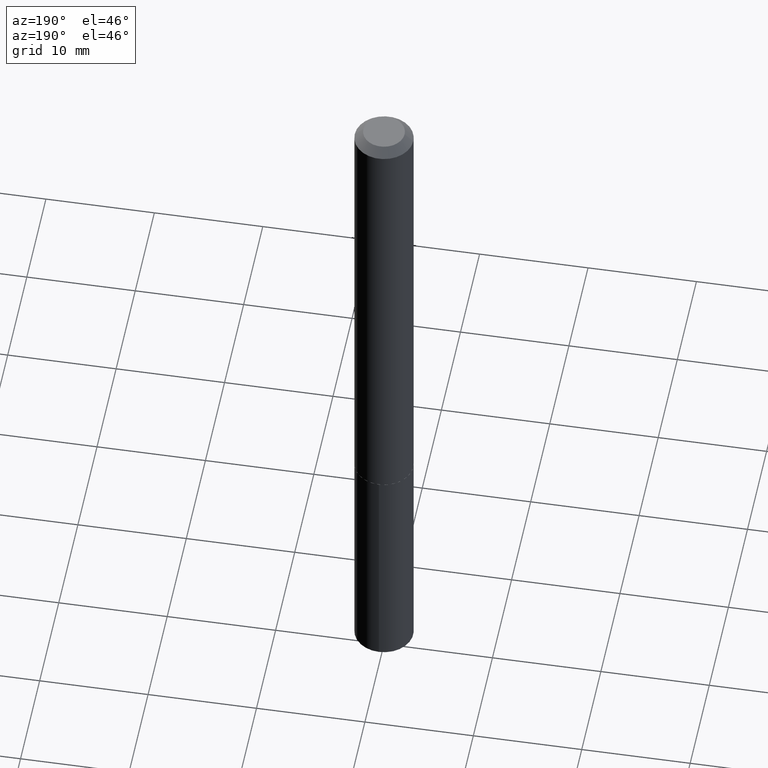
[diagram: clean part render]
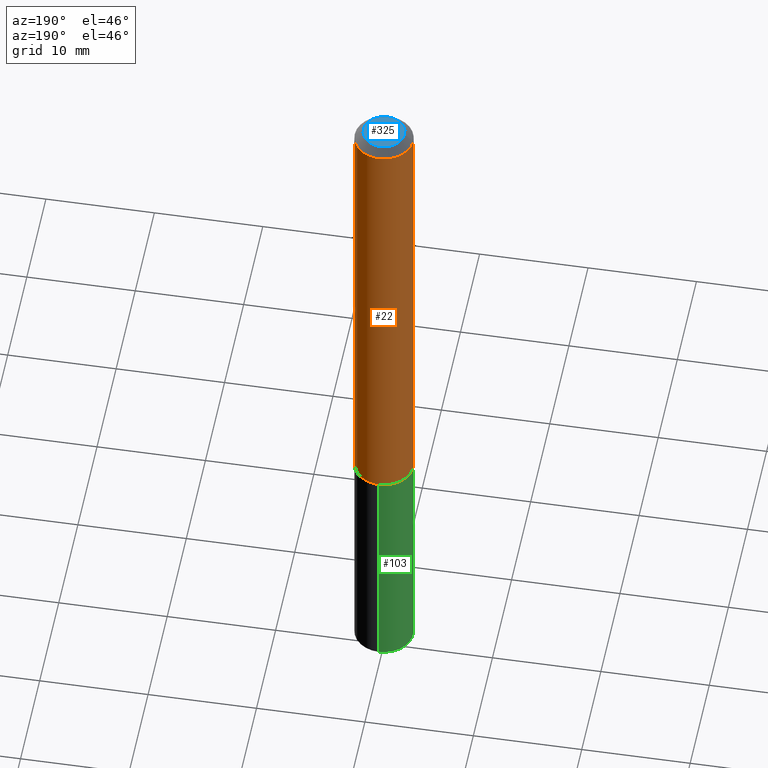
[diagram: same view with three faces highlighted in distinct colors, each labeled with its STEP entity id]
A machine part, auxiliary view with three faces highlighted in distinct colors.
Their STEP definitions:

[orange] entity #22 — the highlighted cylindrical surface (edge-blend (fillet) strip) has radius 2.7 mm, axis along (-0, 0, 1).
#2 = EDGE_CURVE ( 'NONE', #16, #351, #170, .T. ) ;
#12 = ORIENTED_EDGE ( 'NONE', *, *, #359, .F. ) ;
#16 = VERTEX_POINT ( 'NONE', #117 ) ;
#22 = ADVANCED_FACE ( 'NONE', ( #239 ), #128, .T. ) ;
#27 = VECTOR ( 'NONE', #307, 39.37007874015748143 ) ;
#55 = CARTESIAN_POINT ( 'NONE',  ( 0.000000000000000000, 0.000000000000000000, 0.000000000000000000 ) ) ;
#63 = CARTESIAN_POINT ( 'NONE',  ( 0.1063000000000002415, -6.706088207516028077E-15, -1.708099999999999952 ) ) ;
#86 = DIRECTION ( 'NONE',  ( -2.445468806185136597E-29, 3.491481338843145583E-15, 1.000000000000000000 ) ) ;
#91 = AXIS2_PLACEMENT_3D ( 'NONE', #55, #86, #294 ) ;
#96 = EDGE_CURVE ( 'NONE', #174, #351, #267, .T. ) ;
#117 = CARTESIAN_POINT ( 'NONE',  ( 0.1063000000000000056, -8.513977244768991407E-16, -0.03125000000000019429 ) ) ;
#128 = CYLINDRICAL_SURFACE ( 'NONE', #91, 0.1063000000000001166 ) ;
#158 = AXIS2_PLACEMENT_3D ( 'NONE', #287, #380, #382 ) ;
#159 = CARTESIAN_POINT ( 'NONE',  ( -0.1063000000000001166, 7.553069281129873262E-16, -5.228828000940970663E-30 ) ) ;
#170 = CIRCLE ( 'NONE', #158, 0.1063000000000000056 ) ;
#174 = VERTEX_POINT ( 'NONE', #240 ) ;
#187 = DIRECTION ( 'NONE',  ( -2.445468806185136597E-29, 3.491481338843145583E-15, 1.000000000000000000 ) ) ;
#190 = DIRECTION ( 'NONE',  ( 1.000000000000000000, -6.982962677686262766E-15, 0.000000000000000000 ) ) ;
#194 = ORIENTED_EDGE ( 'NONE', *, *, #2, .F. ) ;
#198 = ORIENTED_EDGE ( 'NONE', *, *, #270, .T. ) ;
#212 = DIRECTION ( 'NONE',  ( -2.445468806185136877E-29, 3.491481338843145188E-15, 1.000000000000000000 ) ) ;
#222 = CARTESIAN_POINT ( 'NONE',  ( 4.177105267844832123E-29, -5.963799274877977150E-15, -1.708099999999999952 ) ) ;
#239 = FACE_OUTER_BOUND ( 'NONE', #378, .T. ) ;
#240 = CARTESIAN_POINT ( 'NONE',  ( -0.1063000000000002415, -5.208492346764989429E-15, -1.708099999999999952 ) ) ;
#250 = CIRCLE ( 'NONE', #333, 0.1063000000000002415 ) ;
#252 = LINE ( 'NONE', #337, #27 ) ;
#261 = ORIENTED_EDGE ( 'NONE', *, *, #96, .T. ) ;
#267 = LINE ( 'NONE', #159, #278 ) ;
#270 = EDGE_CURVE ( 'NONE', #314, #174, #250, .T. ) ;
#278 = VECTOR ( 'NONE', #212, 39.37007874015748143 ) ;
#279 = CARTESIAN_POINT ( 'NONE',  ( -0.1063000000000000056, -2.281147105245424221E-15, -0.03125000000000019429 ) ) ;
#287 = CARTESIAN_POINT ( 'NONE',  ( 7.642090019328599159E-31, -1.091087918388489774E-16, -0.03125000000000019429 ) ) ;
#294 = DIRECTION ( 'NONE',  ( 1.000000000000000000, -6.982962677686266711E-15, 4.876176775795935793E-29 ) ) ;
#307 = DIRECTION ( 'NONE',  ( -2.445468806185136877E-29, 3.491481338843145188E-15, 1.000000000000000000 ) ) ;
#314 = VERTEX_POINT ( 'NONE', #63 ) ;
#333 = AXIS2_PLACEMENT_3D ( 'NONE', #222, #187, #190 ) ;
#337 = CARTESIAN_POINT ( 'NONE',  ( 0.1063000000000001166, -7.422889326380509276E-16, 5.183375912671085656E-30 ) ) ;
#351 = VERTEX_POINT ( 'NONE', #279 ) ;
#359 = EDGE_CURVE ( 'NONE', #314, #16, #252, .T. ) ;
#378 = EDGE_LOOP ( 'NONE', ( #198, #261, #194, #12 ) ) ;
#380 = DIRECTION ( 'NONE',  ( -2.445468806185136597E-29, 3.491481338843145583E-15, 1.000000000000000000 ) ) ;
#382 = DIRECTION ( 'NONE',  ( 1.000000000000000000, -6.982962677686267499E-15, 0.000000000000000000 ) ) ;

[blue] entity #325 — the highlighted planar face has unit normal (0, -0, -1).
#35 = FACE_OUTER_BOUND ( 'NONE', #169, .T. ) ;
#50 = VERTEX_POINT ( 'NONE', #125 ) ;
#53 = AXIS2_PLACEMENT_3D ( 'NONE', #214, #155, #387 ) ;
#97 = CARTESIAN_POINT ( 'NONE',  ( -5.839929314523221596E-48, 8.337871319499147471E-34, 2.388061258337352918E-19 ) ) ;
#98 = AXIS2_PLACEMENT_3D ( 'NONE', #97, #218, #334 ) ;
#112 = AXIS2_PLACEMENT_3D ( 'NONE', #247, #277, #363 ) ;
#119 = CIRCLE ( 'NONE', #53, 0.07505000000000000560 ) ;
#125 = CARTESIAN_POINT ( 'NONE',  ( -0.07505000000000001947, 5.786257448797778683E-16, 2.388061258298797245E-19 ) ) ;
#132 = PLANE ( 'NONE',  #112 ) ;
#137 = CIRCLE ( 'NONE', #98, 0.07505000000000000560 ) ;
#151 = EDGE_CURVE ( 'NONE', #50, #372, #119, .T. ) ;
#155 = DIRECTION ( 'NONE',  ( -2.445468806185136597E-29, 3.491481338843145583E-15, 1.000000000000000000 ) ) ;
#169 = EDGE_LOOP ( 'NONE', ( #321, #312 ) ) ;
#214 = CARTESIAN_POINT ( 'NONE',  ( -5.839929314523221596E-48, 8.337871319499147471E-34, 2.388061258337352918E-19 ) ) ;
#218 = DIRECTION ( 'NONE',  ( -2.445468806185136597E-29, 3.491481338843145583E-15, 1.000000000000000000 ) ) ;
#247 = CARTESIAN_POINT ( 'NONE',  ( -2.919964657261610798E-48, 4.168935659749573735E-34, 1.194030629168676459E-19 ) ) ;
#277 = DIRECTION ( 'NONE',  ( 2.438088387897960049E-29, -3.491481338843145188E-15, -1.000000000000000000 ) ) ;
#312 = ORIENTED_EDGE ( 'NONE', *, *, #341, .T. ) ;
#321 = ORIENTED_EDGE ( 'NONE', *, *, #151, .T. ) ;
#325 = ADVANCED_FACE ( 'NONE', ( #35 ), #132, .F. ) ;
#334 = DIRECTION ( 'NONE',  ( 1.000000000000000000, -6.982962677686265922E-15, 4.876182450887181548E-29 ) ) ;
#341 = EDGE_CURVE ( 'NONE', #372, #50, #137, .T. ) ;
#348 = CARTESIAN_POINT ( 'NONE',  ( 0.07505000000000001947, -6.766300518673582083E-16, 2.388061258379330487E-19 ) ) ;
#363 = DIRECTION ( 'NONE',  ( -1.000000000000000000, 6.982962677686265922E-15, -4.876176775795935793E-29 ) ) ;
#372 = VERTEX_POINT ( 'NONE', #348 ) ;
#387 = DIRECTION ( 'NONE',  ( 1.000000000000000000, -6.982962677686265922E-15, 4.876182450887181548E-29 ) ) ;

[green] entity #103 — the highlighted cylindrical surface (edge-blend (fillet) strip) has radius 2.7 mm, axis along (-0, 0, 1).
#6 = CARTESIAN_POINT ( 'NONE',  ( 4.178328002247923804E-29, -5.965545015547398653E-15, -1.708599999999999897 ) ) ;
#8 = DIRECTION ( 'NONE',  ( -2.445479163494150825E-29, 3.491466506587135831E-15, 1.000000000000000000 ) ) ;
#30 = DIRECTION ( 'NONE',  ( -2.445479163494150825E-29, 3.491466506587135831E-15, 1.000000000000000000 ) ) ;
#38 = CARTESIAN_POINT ( 'NONE',  ( 7.553069281130489560E-16, 0.1062999999999909850, -2.569917000844572197 ) ) ;
#58 = AXIS2_PLACEMENT_3D ( 'NONE', #6, #8, #253 ) ;
#60 = LINE ( 'NONE', #185, #377 ) ;
#66 = CARTESIAN_POINT ( 'NONE',  ( 7.553069281130281498E-16, 0.1062999999999940520, -1.708600000000000119 ) ) ;
#94 = CARTESIAN_POINT ( 'NONE',  ( 4.178328002247923804E-29, -5.965545015547398653E-15, -1.708599999999999897 ) ) ;
#103 = ADVANCED_FACE ( 'NONE', ( #383 ), #329, .T. ) ;
#107 = ORIENTED_EDGE ( 'NONE', *, *, #176, .T. ) ;
#123 = EDGE_CURVE ( 'NONE', #203, #293, #322, .T. ) ;
#124 = CARTESIAN_POINT ( 'NONE',  ( 7.553069281130493504E-16, 0.1062999999999940243, -1.708600000000000119 ) ) ;
#139 = EDGE_LOOP ( 'NONE', ( #285, #264, #107, #262 ) ) ;
#160 = VECTOR ( 'NONE', #276, 39.37007874015748143 ) ;
#167 = VERTEX_POINT ( 'NONE', #124 ) ;
#176 = EDGE_CURVE ( 'NONE', #293, #234, #60, .T. ) ;
#185 = CARTESIAN_POINT ( 'NONE',  ( -7.422889326380084277E-16, -0.1063000000000059592, -1.708599999999999675 ) ) ;
#192 = AXIS2_PLACEMENT_3D ( 'NONE', #238, #297, #355 ) ;
#203 = VERTEX_POINT ( 'NONE', #38 ) ;
#234 = VERTEX_POINT ( 'NONE', #303 ) ;
#238 = CARTESIAN_POINT ( 'NONE',  ( 6.284660780976598715E-29, -8.972804475550304007E-15, -2.569917000844571753 ) ) ;
#241 = EDGE_CURVE ( 'NONE', #203, #167, #336, .T. ) ;
#253 = DIRECTION ( 'NONE',  ( -6.982962677686265922E-15, -1.000000000000000000, 2.569941668545873170E-15 ) ) ;
#254 = CARTESIAN_POINT ( 'NONE',  ( -7.422889326379869312E-16, -0.1063000000000089568, -2.569917000844570865 ) ) ;
#255 = AXIS2_PLACEMENT_3D ( 'NONE', #94, #360, #362 ) ;
#260 = EDGE_CURVE ( 'NONE', #167, #234, #338, .T. ) ;
#262 = ORIENTED_EDGE ( 'NONE', *, *, #260, .F. ) ;
#264 = ORIENTED_EDGE ( 'NONE', *, *, #123, .T. ) ;
#276 = DIRECTION ( 'NONE',  ( -2.445479163494150825E-29, 3.491466506587135831E-15, 1.000000000000000000 ) ) ;
#285 = ORIENTED_EDGE ( 'NONE', *, *, #241, .F. ) ;
#293 = VERTEX_POINT ( 'NONE', #254 ) ;
#297 = DIRECTION ( 'NONE',  ( -2.445479163494150825E-29, 3.491466506587135831E-15, 1.000000000000000000 ) ) ;
#303 = CARTESIAN_POINT ( 'NONE',  ( -7.422889326380084277E-16, -0.1063000000000059592, -1.708599999999999675 ) ) ;
#322 = CIRCLE ( 'NONE', #192, 0.1063000000000000056 ) ;
#329 = CYLINDRICAL_SURFACE ( 'NONE', #255, 0.1063000000000000056 ) ;
#336 = LINE ( 'NONE', #66, #160 ) ;
#338 = CIRCLE ( 'NONE', #58, 0.1063000000000000056 ) ;
#355 = DIRECTION ( 'NONE',  ( -6.982962677686265922E-15, -1.000000000000000000, 5.139883337091746339E-15 ) ) ;
#360 = DIRECTION ( 'NONE',  ( -2.445479163494150825E-29, 3.491466506587135831E-15, 1.000000000000000000 ) ) ;
#362 = DIRECTION ( 'NONE',  ( -6.982962677686265922E-15, -1.000000000000000000, 2.569941668545873170E-15 ) ) ;
#377 = VECTOR ( 'NONE', #30, 39.37007874015748143 ) ;
#383 = FACE_OUTER_BOUND ( 'NONE', #139, .T. ) ;